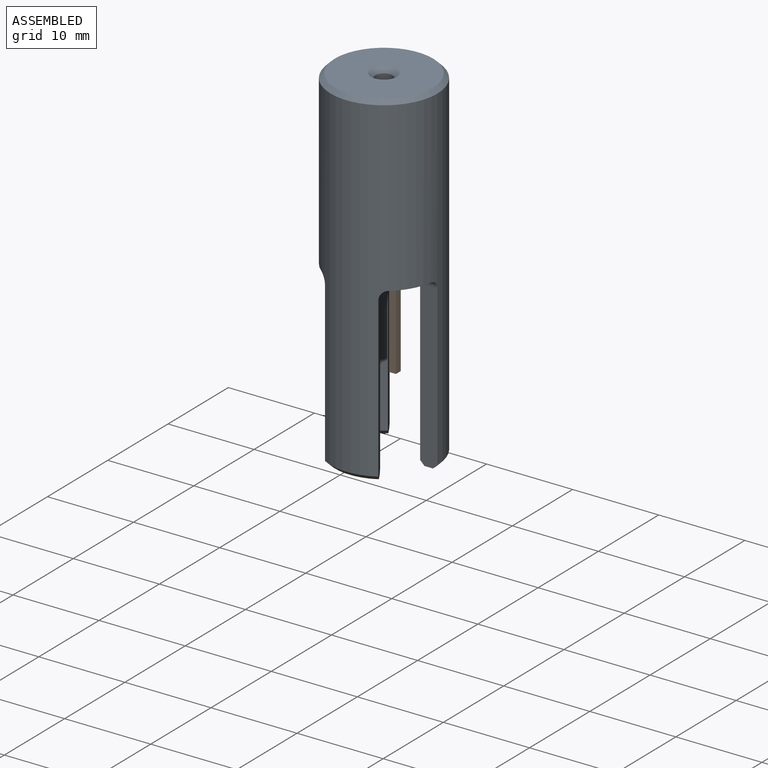
[diagram: assembled view]
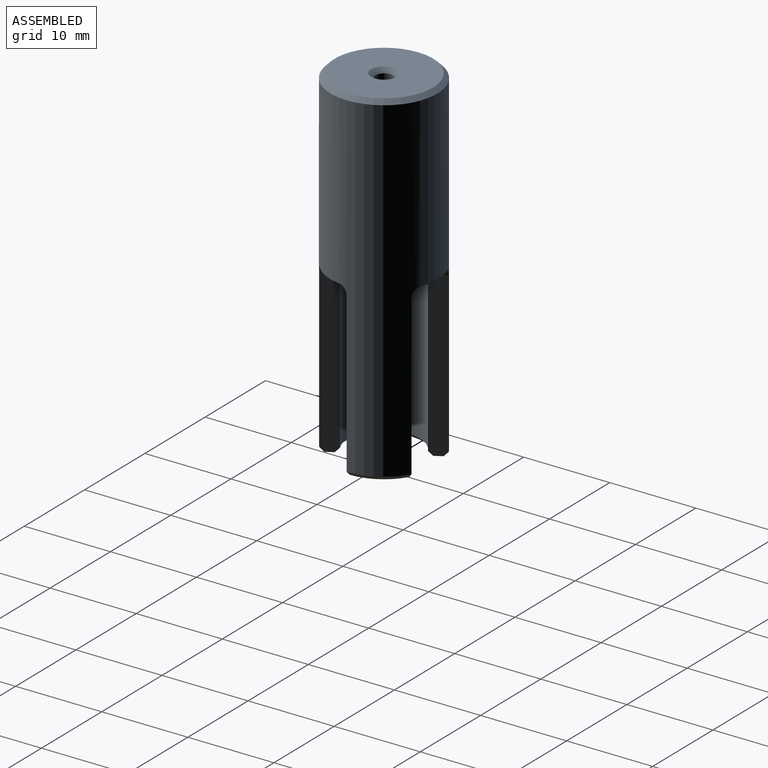
[diagram: assembled view, second angle]
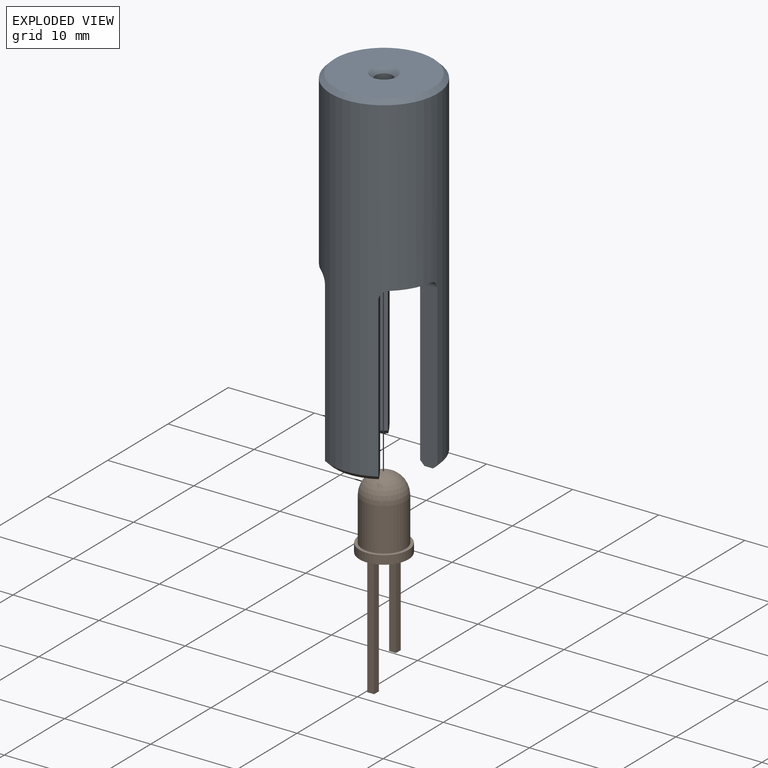
[diagram: exploded view]
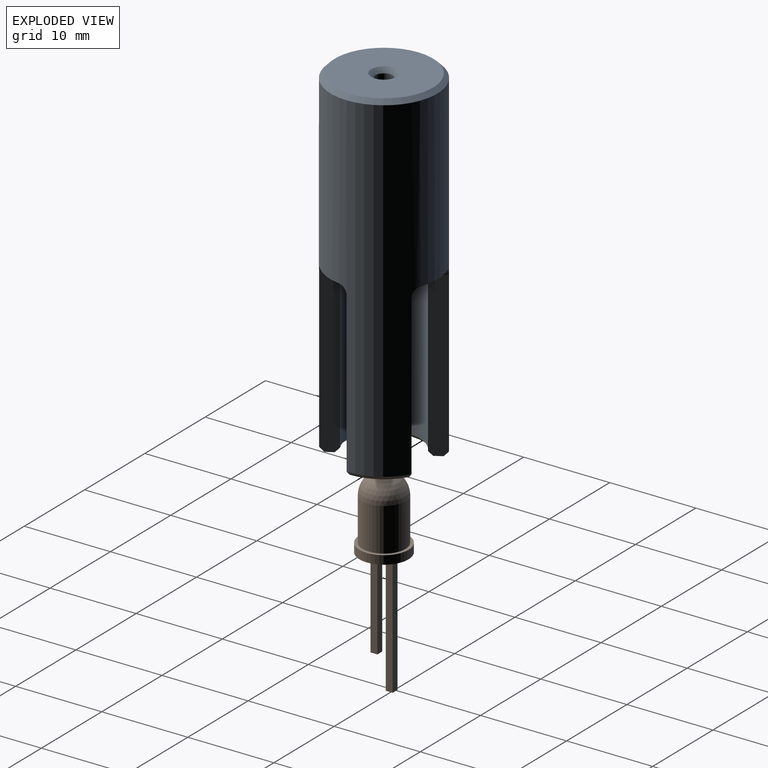
[diagram: exploded view, second angle]
ASSEMBLY  parts=2 mates=2
PART A: 36 faces, bbox 12.4x12.4x40 mm
  f0: plane 12.24x11mm, normal (0,0,-1), area 45.8mm2, adj f2,f9,f12,f18,f24,f29,f30,f31
  f1: cylinder r=2.6mm len=5.2mm, axis (0,0,-1), area 24.5mm2, adj f7,f9
  f2: cylinder r=6.2mm len=39mm, axis (0,0,-1), area 1140.7mm2, adj f0,f10,f11,f13,f15,f17,f19,f21
  f3: plane 11.4x11.4mm, normal (0,0,1), area 95mm2, adj f10,f35
  f4: cylinder r=1mm len=4mm, axis (0,0,-1), area 25.1mm2, adj f8,f35
  f5: plane 6.95x6.95mm, normal (0,0,-1), area 30.9mm2, adj f6,f8
  f6: torus R=3.48mm, axis (0,0,-1), area 111.7mm2, adj f5,f7
  f7: cone r=5.41mm half-angle=15deg, axis (0,0,1), area 273mm2, adj f1,f6
  f8: cone r=1mm half-angle=45deg, axis (0,0,-1), area 5.6mm2, adj f4,f5
  f9: cone r=2.6mm half-angle=45deg, axis (0,0,-1), area 12.7mm2, adj f0,f1
  f10: cone r=6.2mm half-angle=45deg, axis (0,0,-1), area 26.4mm2, adj f2,f3
  f11: plane 19x1.73mm, normal (-0.87,0.5,0), area 37.8mm2, adj f2,f12,f14,f15,f16,f34
  f12: cylinder r=4.2mm len=19.5mm, axis (0,0,1), area 86.2mm2, adj f0,f11,f13,f16,f33,f34
  f13: plane 19x1.73mm, normal (0.87,0.5,0), area 37.8mm2, adj f2,f12,f14,f15,f16,f33
  f14: plane 5.7x1.63mm, normal (0,0,-1), area 5.4mm2, adj f11,f13,f15,f16
  f15: cone r=5.7mm half-angle=45deg, axis (0,0,1), area 4.4mm2, adj f2,f11,f13,f14
  f16: cone r=4.2mm half-angle=45deg, axis (0,0,-1), area 3.3mm2, adj f11,f12,f13,f14
  f17: plane 19x1.73mm, normal (0.87,0.5,0), area 37.8mm2, adj f2,f18,f20,f21,f22,f32
  f18: cylinder r=4.2mm len=19.5mm, axis (0,0,1), area 86.2mm2, adj f0,f17,f19,f22,f31,f32
  f19: plane 19x2mm, normal (0,-1,0), area 37.8mm2, adj f2,f18,f20,f21,f22,f31
  f20: plane 4.94x3.35mm, normal (0,0,-1), area 5.4mm2, adj f17,f19,f21,f22
  f21: cone r=5.7mm half-angle=45deg, axis (0,0,1), area 4.4mm2, adj f2,f17,f19,f20
  f22: cone r=4.2mm half-angle=45deg, axis (0,0,-1), area 3.3mm2, adj f17,f18,f19,f20
  f23: plane 19x2mm, normal (0,-1,0), area 37.8mm2, adj f2,f24,f26,f27,f28,f30
  f24: cylinder r=4.2mm len=19.5mm, axis (0,0,1), area 86.2mm2, adj f0,f23,f25,f28,f29,f30
  f25: plane 19x1.73mm, normal (-0.87,0.5,0), area 37.8mm2, adj f2,f24,f26,f27,f28,f29
  f26: plane 4.94x3.35mm, normal (0,0,-1), area 5.4mm2, adj f23,f25,f27,f28
  f27: cone r=5.7mm half-angle=45deg, axis (0,0,1), area 4.4mm2, adj f2,f23,f25,f26
  f28: cone r=4.2mm half-angle=45deg, axis (0,0,-1), area 3.3mm2, adj f23,f24,f25,f26
  f29: cylinder r=1mm len=2.34mm, axis (0.5,0.87,0), area 3.2mm2, adj f0,f2,f24,f25
  f30: cylinder r=1mm len=2.12mm, axis (-1,0,0), area 3.2mm2, adj f0,f2,f23,f24
  f31: cylinder r=1mm len=2.12mm, axis (-1,0,0), area 3.2mm2, adj f0,f2,f18,f19
  f32: cylinder r=1mm len=2.34mm, axis (0.5,-0.87,0), area 3.2mm2, adj f0,f2,f17,f18
  f33: cylinder r=1mm len=2.34mm, axis (0.5,-0.87,0), area 3.2mm2, adj f0,f2,f12,f13
  f34: cylinder r=1mm len=2.34mm, axis (0.5,0.87,0), area 3.2mm2, adj f0,f2,f11,f12
  f35: cone r=1.5mm half-angle=45deg, axis (0,0,1), area 5.6mm2, adj f3,f4
PART B: 15 faces, bbox 5.7x5.7x23.5 mm
  f0: plane 15x0.8mm, normal (0,1,0), area 12mm2, adj f1,f3,f4,f5
  f1: plane 15x0.8mm, normal (1,0,0), area 12mm2, adj f0,f2,f4,f5
  f2: plane 15x0.8mm, normal (0,-1,0), area 12mm2, adj f1,f3,f4,f5
  f3: plane 15x0.8mm, normal (-1,0,0), area 12mm2, adj f0,f2,f4,f5
  f4: plane 0.8x0.8mm, normal (0,0,-1), area 0.6mm2, adj f0,f1,f2,f3
  f5: plane 5.7x5.7mm, normal (0,0,-1), area 24.2mm2, adj f0,f1,f2,f3,f6,f10,f11,f12
  f6: cylinder r=2.85mm len=5.7mm, axis (0,0,-1), area 17.9mm2, adj f5,f7
  f7: plane 5.7x5.7mm, normal (0,0,1), area 5.9mm2, adj f6,f8
  f8: cylinder r=2.5mm len=5mm, axis (0,0,-1), area 78.5mm2, adj f7,f9
  f9: sphere r=2.5mm, area 39.3mm2, adj f8
  f10: plane 10x0.8mm, normal (0,1,0), area 8mm2, adj f5,f11,f13,f14
  f11: plane 10x0.8mm, normal (1,0,0), area 8mm2, adj f5,f10,f12,f14
  f12: plane 10x0.8mm, normal (0,-1,0), area 8mm2, adj f5,f11,f13,f14
  f13: plane 10x0.8mm, normal (-1,0,0), area 8mm2, adj f5,f10,f12,f14
  f14: plane 0.8x0.8mm, normal (0,0,-1), area 0.6mm2, adj f10,f11,f12,f13
PLACE A t=(-7.35,0.65,2.34)mm
PLACE B t=(-7.35,0.65,1.34)mm
MATE cylindrical B.f6 <-> A.f1  axis (0,0,-1) through (-7.35,0.65,4.84)mm
MATE planar B.f6 <-> A.f12  axis (0,0,1) through (-7.35,0.65,2.34)mm
